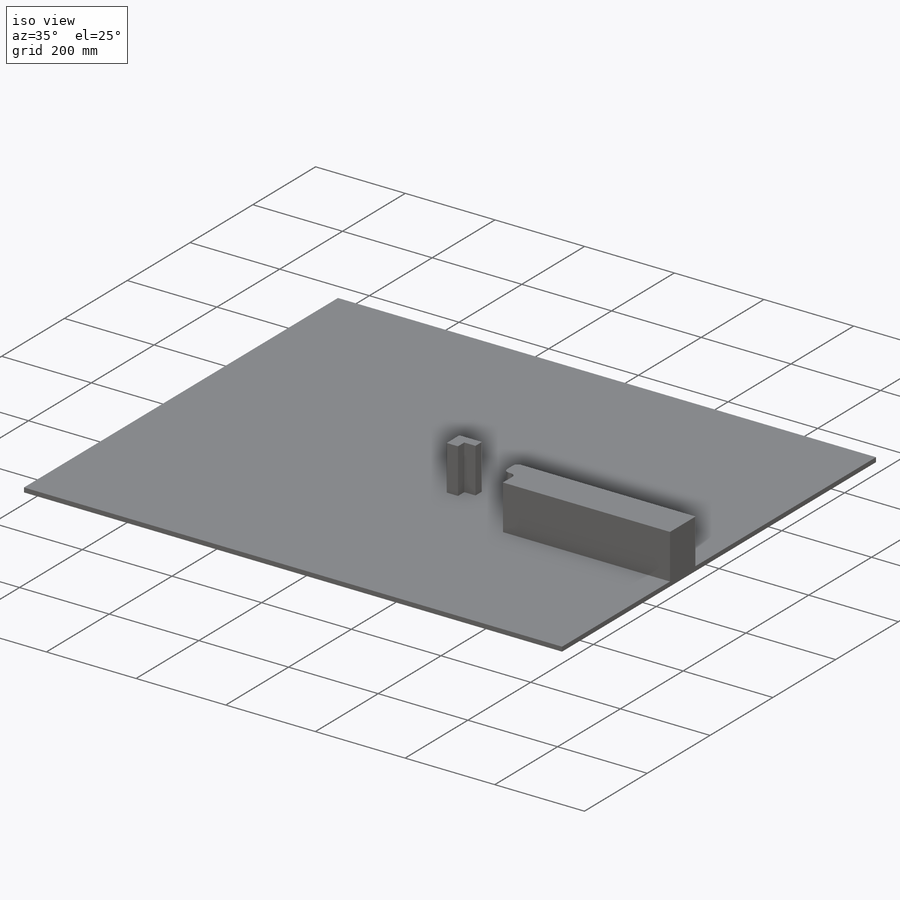
[diagram: iso view]
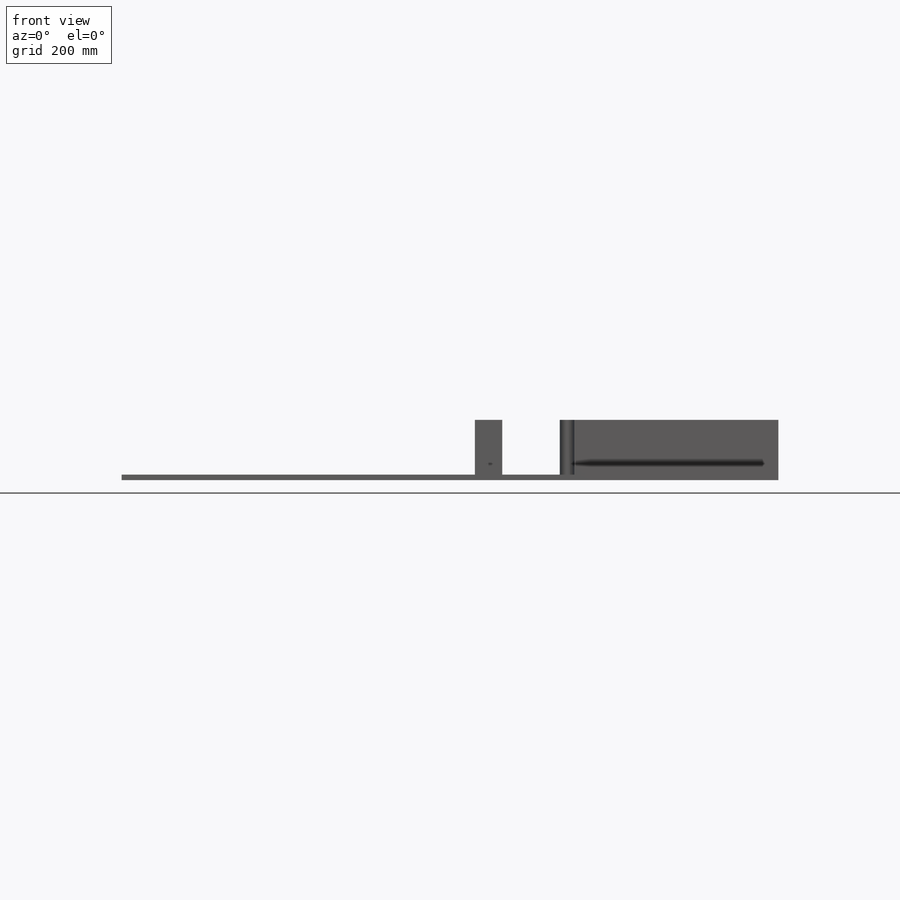
[diagram: front view]
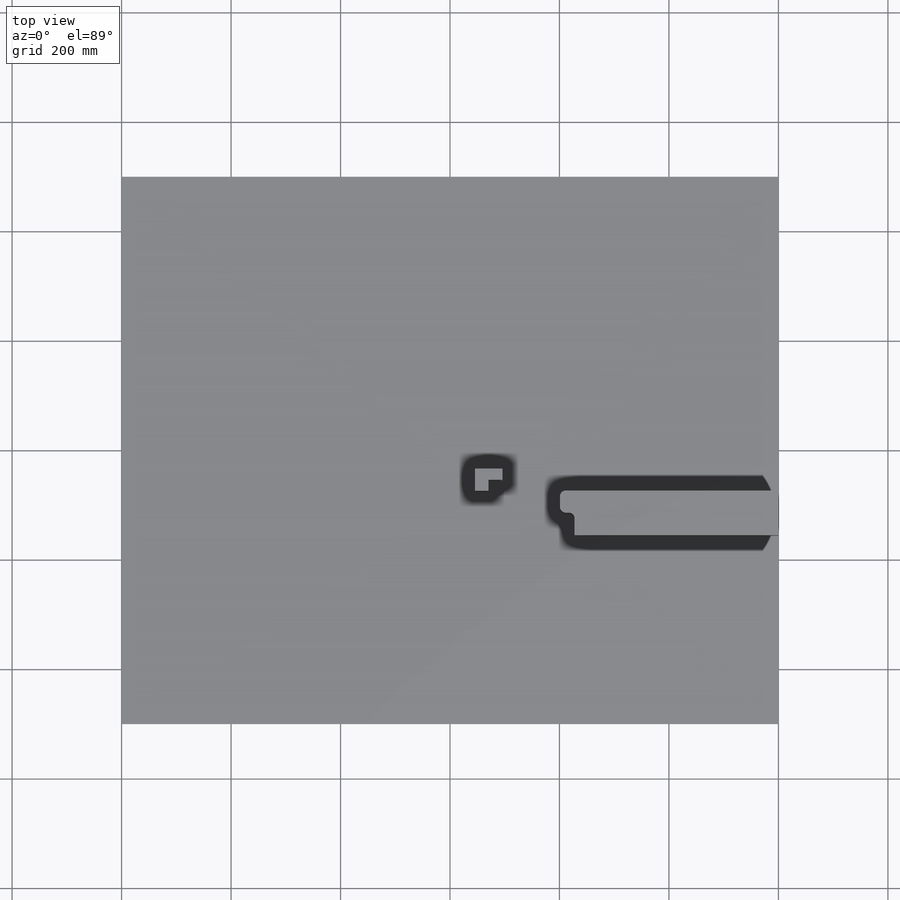
[diagram: top view]
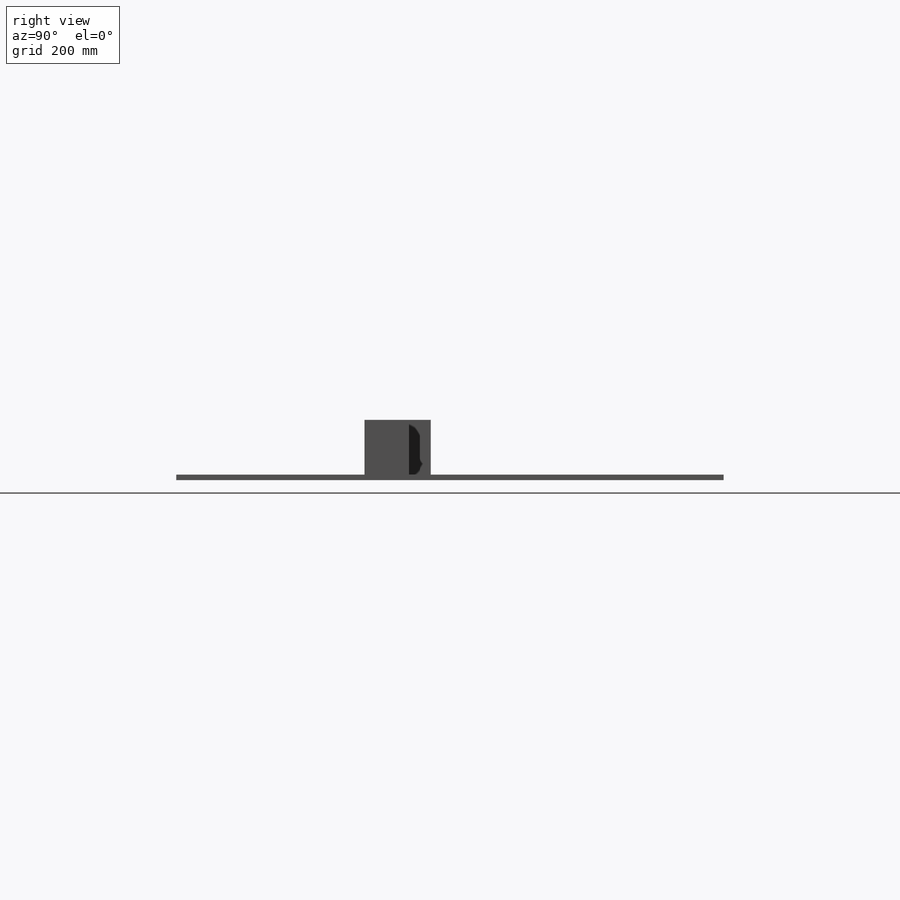
[diagram: right view]
SOLIDWORKS PART (.sldprt)
format: sldprt  version: not decoded by parser v0  size: 166,400 bytes
history: native  units: mm
features: sketch x3, extrude x3, material x1 (+12 scaffold rows collapsed)
feature tree (19):
  scaffold x12  (default folders/planes/origin — collapsed)
  material  "AISI 1015 Steel, Cold Drawn (SS)"
  sketch  "Sketch2"  dims[D1=1200.0mm D2=1000.0mm]
  extrude  "Boss-Extrude1"  Depth=10mm
  sketch  "Sketch4"  dims[c1.D6=11.0mm c1.D7=11.0mm c1.D3=11.0mm c1.D1=20.0mm c1.D2=400.0mm c2.D3=8.0mm c2.D4=8.0mm c2.D5=40.0mm c3.D4=30.0mm]
  extrude  "Boss-Extrude2"  Depth=100mm
  sketch  "Sketch5"  dims[c1.D1=120.0mm c1.D2=50.0mm c1.D3=40.0mm c1.D4=25.0mm c2.D1=130.0mm]
  extrude  "Boss-Extrude3"  Depth=100mm
decode coverage: 6 of 6 modeling features carry decoded parameters
note: suppression state not decoded; provenance and decode notes live in map.json
